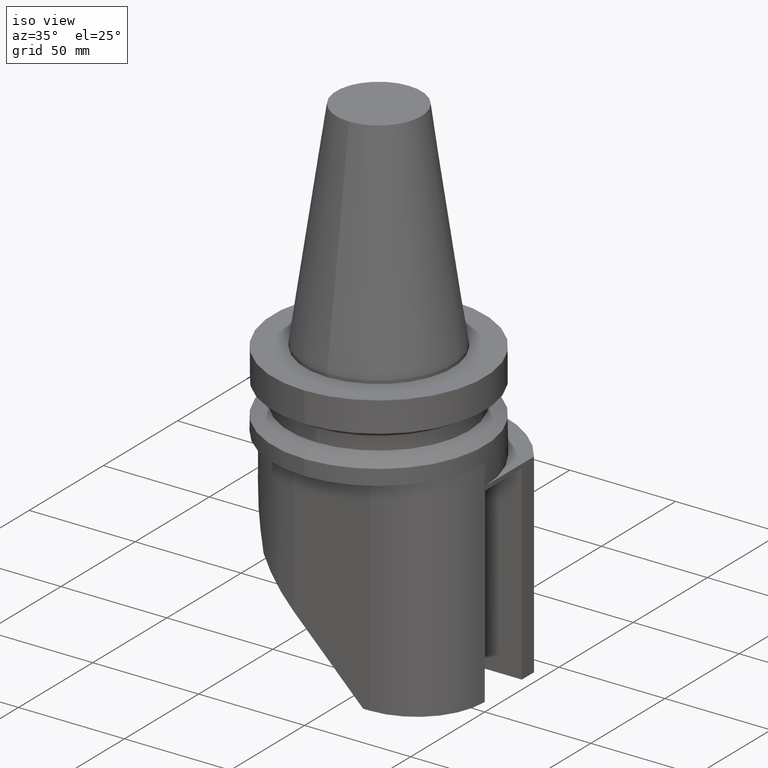
[diagram: clean part render]
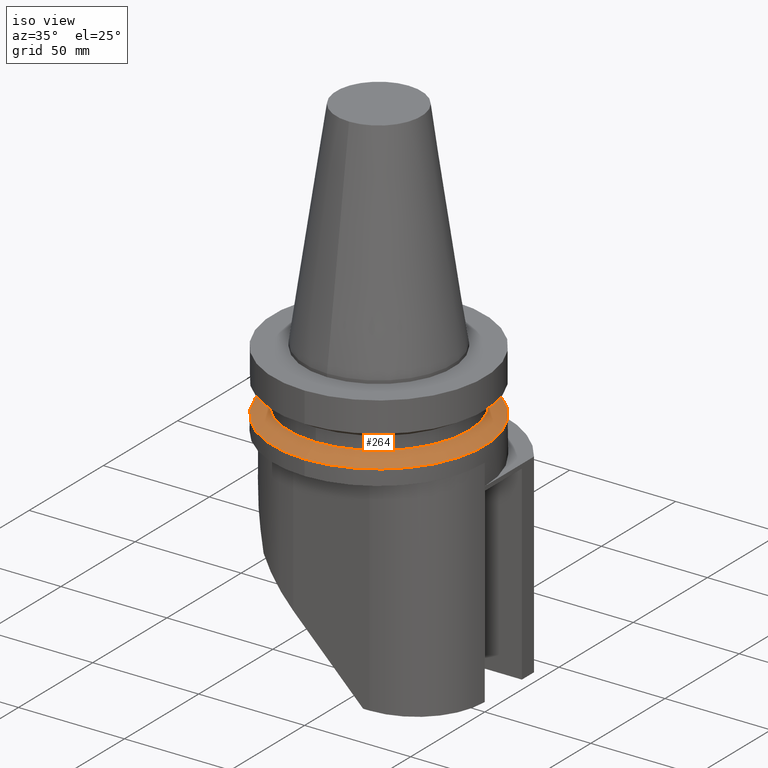
[diagram: same view with one face highlighted and labeled with its STEP entity id]
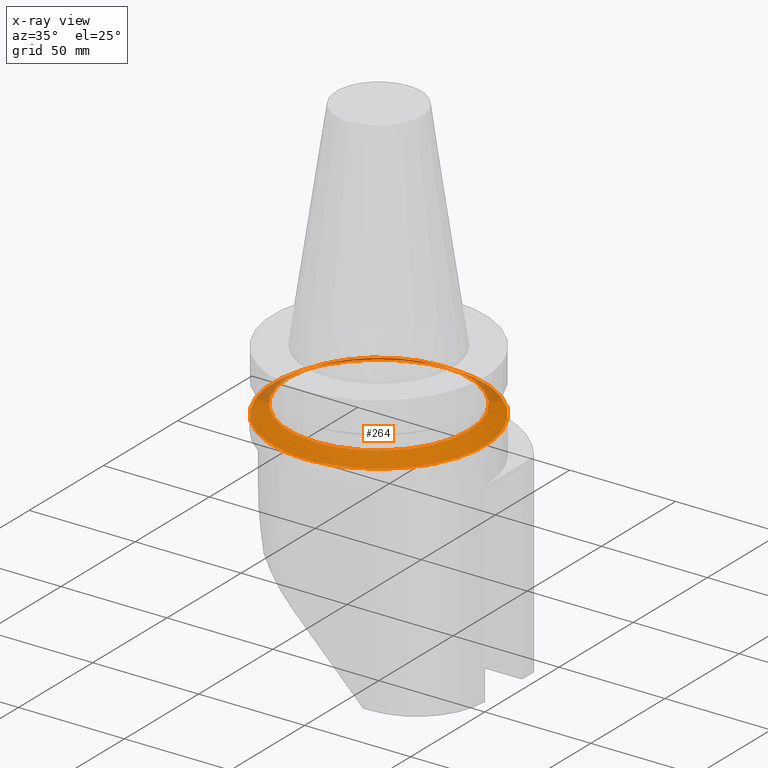
[diagram: x-ray of the same camera — body ghosted, the highlighted face saturated]
A machine part, iso view. The second image highlights one B-rep face of the part: STEP entity #264.
The next image is the same camera in x-ray: the body ghosted, the highlighted face saturated — about 11% of this face is hidden behind the body in this view.
In plain terms, the highlighted conical surface has half-angle 60 deg.
Its self-contained STEP definition (entity closure, byte-faithful):
#248=EDGE_CURVE('Unnamed[1]',#501,#501,#502,.T.);
#261=EDGE_CURVE('Unnamed[1]',#517,#517,#518,.T.);
#264=ADVANCED_FACE('Unnamed[1]',(#521,#522),#523,.T.);
#501=VERTEX_POINT('',#840);
#502=CIRCLE('',#841,42.5000000000006);
#517=VERTEX_POINT('',#866);
#518=CIRCLE('',#867,50.0000000000003);
#521=FACE_BOUND('',#871,.T.);
#522=FACE_BOUND('',#872,.T.);
#523=CONICAL_SURFACE('',#873,46.2500000000005,1.04719755119655);
#840=CARTESIAN_POINT('',(1.61468902701008E-015,-42.5000000000005,-26.3698729810797));
#841=AXIS2_PLACEMENT_3D('',#1150,#1151,#1152);
#866=CARTESIAN_POINT('',(1.87983283669133E-015,-50.0000000000003,-30.7000000000023));
#867=AXIS2_PLACEMENT_3D('',#1163,#1164,#1165);
#871=EDGE_LOOP('',(#1167));
#872=EDGE_LOOP('',(#1168));
#873=AXIS2_PLACEMENT_3D('',#1169,#1170,#1171);
#1150=CARTESIAN_POINT('',(1.61468902701008E-015,4.05354655662961E-014,-26.3698729810797));
#1151=DIRECTION('',(-6.12323399573677E-017,-1.07157455523686E-015,1.0));
#1152=DIRECTION('',(7.04421701866971E-032,-1.0,-1.07157455523686E-015));
#1163=CARTESIAN_POINT('',(1.87983283669132E-015,4.5175519500717E-014,-30.7000000000022));
#1164=DIRECTION('',(-6.12323399573677E-017,-1.07157455523684E-015,1.0));
#1165=DIRECTION('',(7.04421701866992E-032,-1.0,-1.07157455523684E-015));
#1167=ORIENTED_EDGE('',*,*,#248,.F.);
#1168=ORIENTED_EDGE('',*,*,#261,.T.);
#1169=CARTESIAN_POINT('',(1.7472609318507E-015,4.28554925335065E-014,-28.534936490541));
#1170=DIRECTION('',(6.12323399573677E-017,1.07157455523685E-015,-1.0));
#1171=DIRECTION('',(7.04421701866982E-032,-1.0,-1.07157455523685E-015));